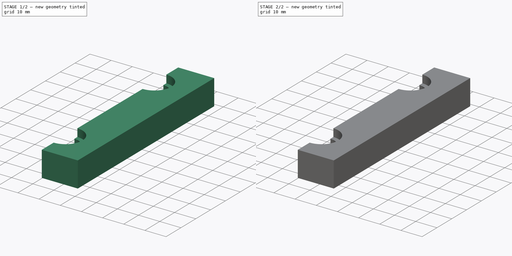
[diagram: build sequence overview — one tinted view per stage of 2, left to right]
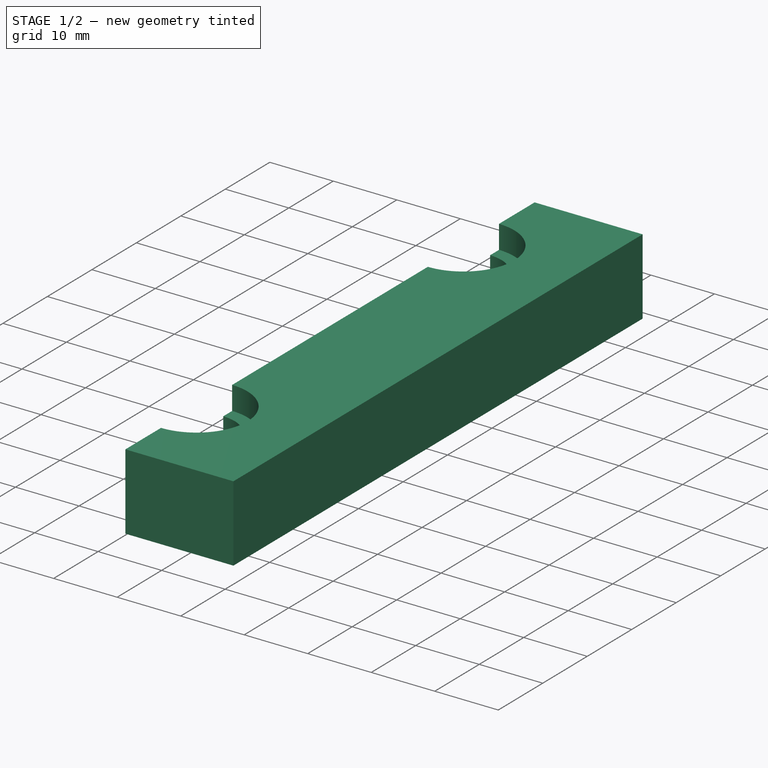
[diagram: stage 1 of 2 — iso view after this stage's code; geometry added in this stage tinted green]
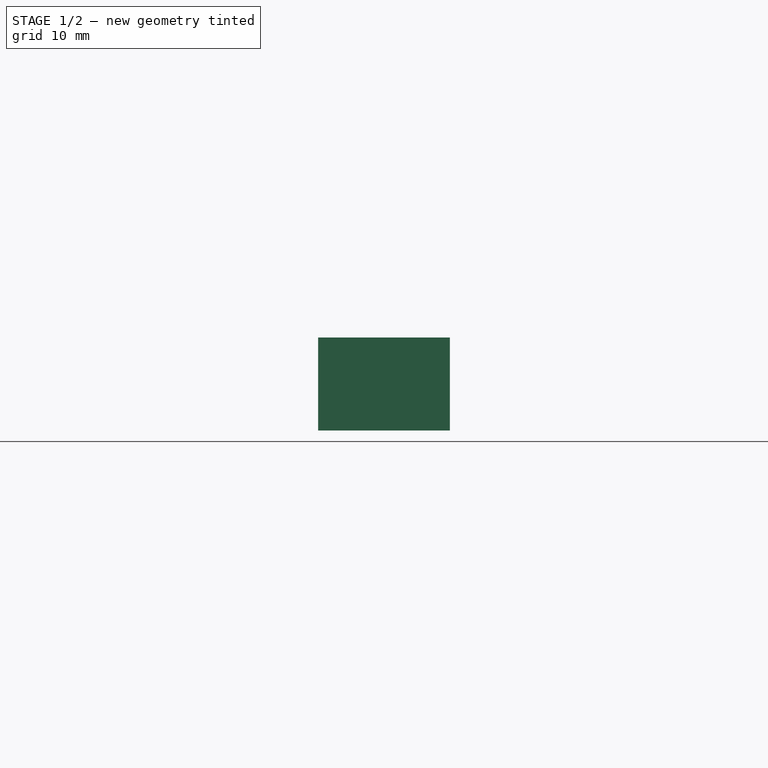
[diagram: stage 1 of 2 — front view after this stage's code; geometry added in this stage tinted green]
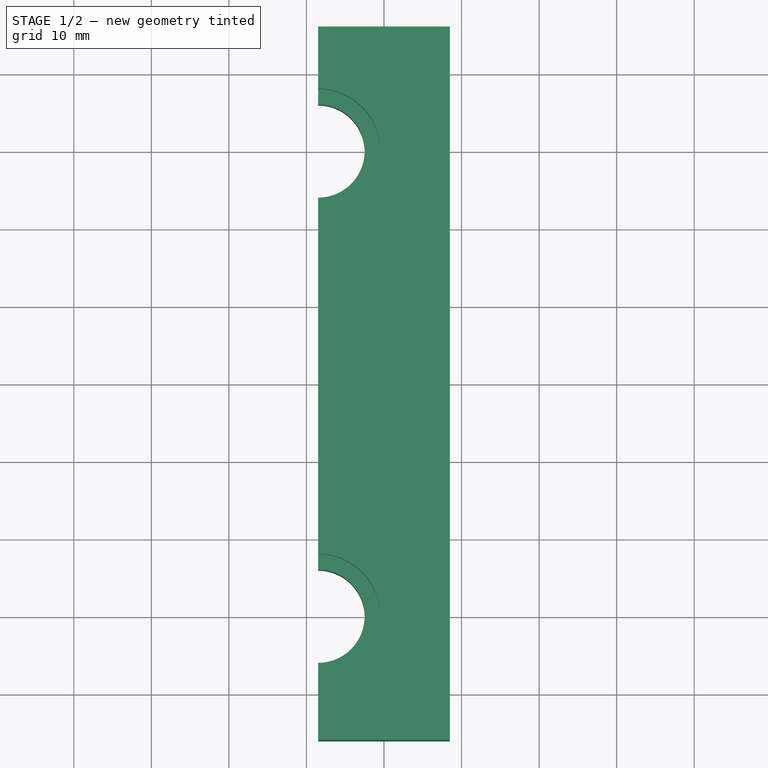
[diagram: stage 1 of 2 — top view after this stage's code; geometry added in this stage tinted green]
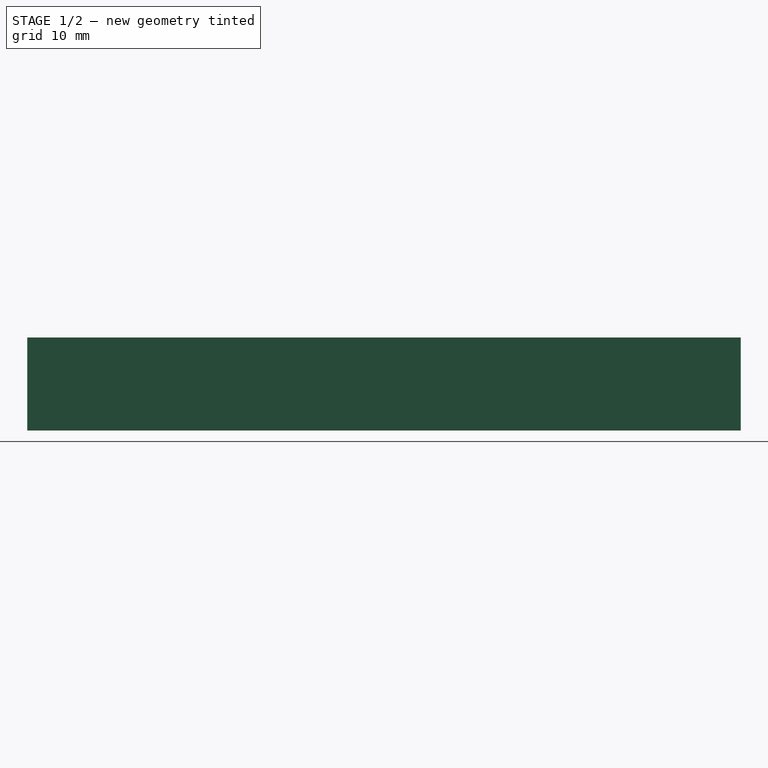
[diagram: stage 1 of 2 — right view after this stage's code; geometry added in this stage tinted green]
FCSTD DOCUMENT  (FreeCAD 0.16R6712 (Git))
Label: hot-end-clamp
License: All rights reserved
LicenseURL: http://en.wikipedia.org/wiki/All_rights_reserved
objects: Sketcher::SketchObject×3, PartDesign::Pocket×2, PartDesign::Pad×1
note: 9 computed .brp shape members not serialized (recipe doc carries the construction recipe); baked Part::Feature solids carry a one-line shape summary decoded from their .brp

FEATURE [Sketcher::SketchObject] Sketch
  sketch-geometry (8):
    g0: LineSegment StartX=-8.5 StartY=36 StartZ=0 EndX=-8.5 EndY=46 EndZ=0
    g1: LineSegment StartX=-8.5 StartY=46 StartZ=0 EndX=8.5 EndY=46 EndZ=0
    g2: LineSegment StartX=8.5 StartY=46 StartZ=0 EndX=8.5 EndY=-46 EndZ=0
    g3: LineSegment StartX=8.5 StartY=-46 StartZ=0 EndX=-8.5 EndY=-46 EndZ=0
    g4: LineSegment StartX=-8.5 StartY=-46 StartZ=0 EndX=-8.5 EndY=-36 EndZ=0
    g5: ArcOfCircle CenterX=-8.5 CenterY=30 CenterZ=0 NormalX=0 NormalY=0 NormalZ=1 Radius=6 StartAngle=4.71239 EndAngle=7.85398
    g6: ArcOfCircle CenterX=-8.5 CenterY=-30 CenterZ=0 NormalX=0 NormalY=0 NormalZ=1 Radius=6 StartAngle=4.71239 EndAngle=7.85398
    g7: LineSegment StartX=-8.5 StartY=24 StartZ=0 EndX=-8.5 EndY=-24 EndZ=0
  constraints (26):
    c: Coincident(g0,g1)
    c: Horizontal(g1)
    c: Coincident(g1,g2)
    c: Vertical(g2)
    c: Coincident(g2,g3)
    c: Horizontal(g3)
    c: Coincident(g3,g4)
    c: Vertical(g4)
    c: Coincident(g5,g0)
    c: Coincident(g6,g4)
    c: Coincident(g7,g5)
    c: Vertical(g0)
    c: Coincident(g7,g6)
    c: Vertical(g7)
    c: Equal(g5,g6)
    c: Radius(g5) = 6
    c: DistanceY(g2,g2) = 92
    c: DistanceY(g5,g0) = 12
    c: DistanceY(g4,g6) = 12
    c: DistanceY(g6,g5) = 60
    c: DistanceY(g0,g0) = 10
    c: DistanceX(g1,g1) = 17
    c: DistanceX(g-1,g1) = 8.5
    c: DistanceY(g-1,g1) = 46
    c: DistanceX(g5,g0) = 0
    c: DistanceY(g6,g6) = 6
FEATURE [PartDesign::Pad] Pad
  Length = 12
  Length2 = 100
  Midplane = true
  Sketch = -> Sketch
  Type = 0
FEATURE [Sketcher::SketchObject] Sketch001
  Placement = pos=(0,0,6) rot=(0,0,1;0rad)
  Support = -> Pad [Face10]
  sketch-geometry (12):
    g0: ArcOfCircle CenterX=-8.50003 CenterY=-30 CenterZ=0 NormalX=0 NormalY=0 NormalZ=1 Radius=8 StartAngle=4.71239 EndAngle=7.85398
    g1: ArcOfCircle CenterX=-8.5 CenterY=30 CenterZ=0 NormalX=0 NormalY=0 NormalZ=1 Radius=8 StartAngle=4.71239 EndAngle=7.85398
    g2: LineSegment StartX=-8.5 StartY=38 StartZ=0 EndX=-18.5 EndY=38 EndZ=0
    g3: LineSegment StartX=-18.5 StartY=38 StartZ=0 EndX=-18.5 EndY=22 EndZ=0
    g4: LineSegment StartX=-18.5 StartY=22 StartZ=0 EndX=-8.5 EndY=22 EndZ=0
    g5: LineSegment StartX=-8.5 StartY=-22 StartZ=0 EndX=-18.5 EndY=-22 EndZ=0
    g6: LineSegment StartX=-18.5 StartY=-22 StartZ=0 EndX=-18.5 EndY=-38 EndZ=0
    g7: LineSegment StartX=-18.5 StartY=-38 StartZ=0 EndX=-8.50003 EndY=-38 EndZ=0
    g8: LineSegment [constr] StartX=-8.5 StartY=46 StartZ=0 EndX=8.5 EndY=46 EndZ=0
    g9: LineSegment [constr] StartX=8.5 StartY=46 StartZ=0 EndX=8.5 EndY=-46 EndZ=0
    g10: LineSegment [constr] StartX=8.5 StartY=-46 StartZ=0 EndX=-8.5 EndY=-46 EndZ=0
    g11: LineSegment [constr] StartX=-8.5 StartY=-46 StartZ=0 EndX=-8.5 EndY=46 EndZ=0
  constraints (36):
    c: Radius(g1) = 8
    c: Radius(g0) = 8
    c: DistanceY(g0,g0) = 8
    c: DistanceY(g1,g1) = 8
    c: Tangent(g1,g2) = -1.5708
    c: Coincident(g2,g3)
    c: Vertical(g3)
    c: Coincident(g3,g4)
    c: Coincident(g4,g1)
    c: Tangent(g0,g5) = -1.5708
    c: Coincident(g5,g6)
    c: Vertical(g6)
    c: Coincident(g6,g7)
    c: Coincident(g7,g0)
    c: Tangent(g7,g0)
    c: Horizontal(g7)
    c: Horizontal(g4)
    c: Tangent(g1,g4)
    c: DistanceX(g1,g-1) = 8.5
    c: DistanceX(g0,g-1) = 8.5
    c: Coincident(g8,g9)
    c: Coincident(g9,g10)
    c: Coincident(g10,g11)
    c: Coincident(g11,g8)
    c: Horizontal(g8)
    c: Horizontal(g10)
    c: Vertical(g9)
    c: Vertical(g11)
    c: DistanceX(g8,g8) = 17
    c: DistanceY(g9,g9) = 92
    c: DistanceX(g-1,g8) = 8.5
    c: DistanceY(g-1,g8) = 46
    c: DistanceY(g1,g8) = 8
    c: DistanceY(g10,g0) = 8
    c: DistanceX(g4,g4) = 10
    c: DistanceX(g5,g5) = 10
FEATURE [PartDesign::Pocket] Pocket
  Length = 3.7
  Sketch = -> Sketch001
  Type = 0
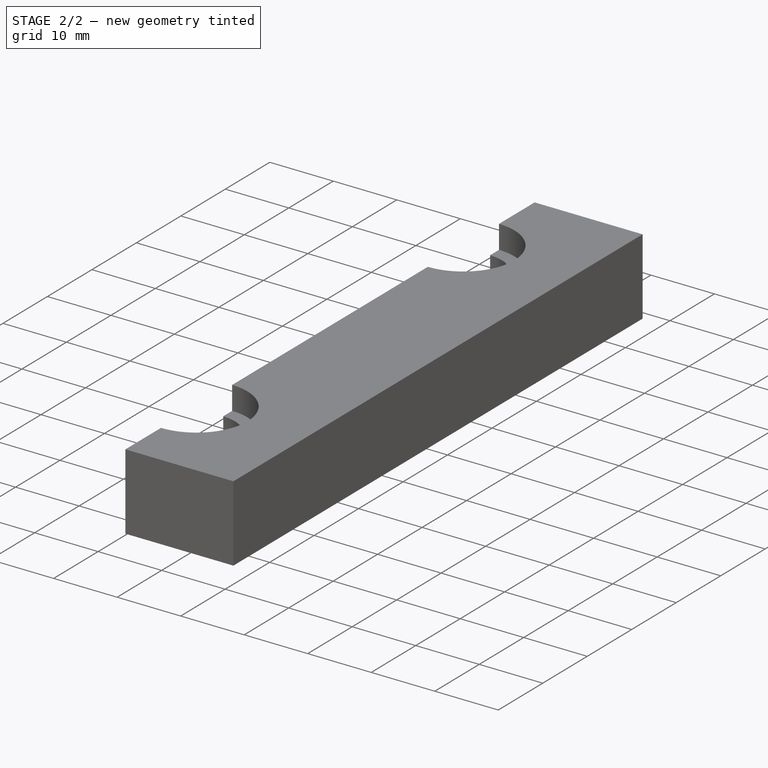
[diagram: stage 2 of 2 — iso view after this stage's code; geometry added in this stage tinted green]
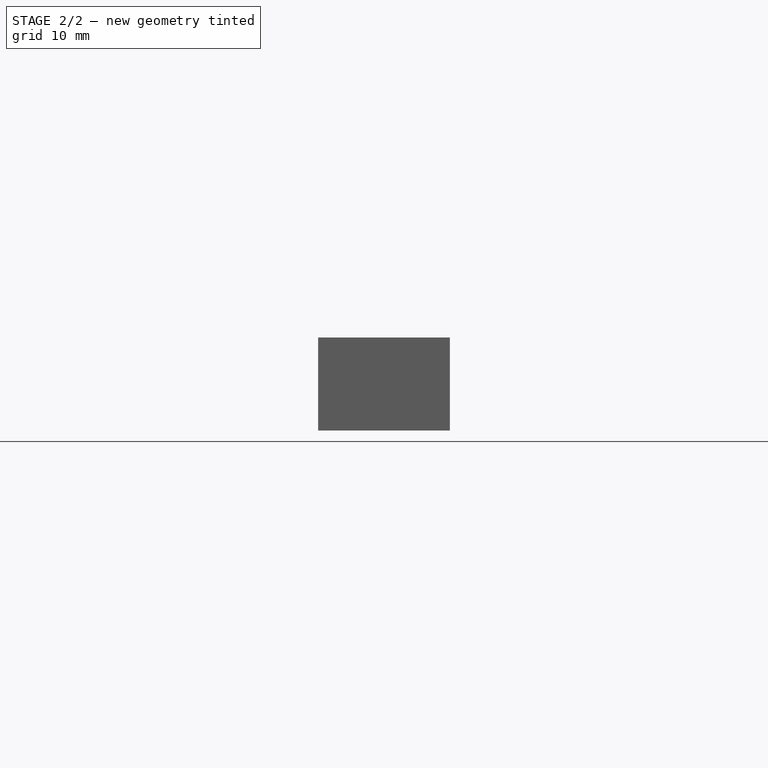
[diagram: stage 2 of 2 — front view after this stage's code; geometry added in this stage tinted green]
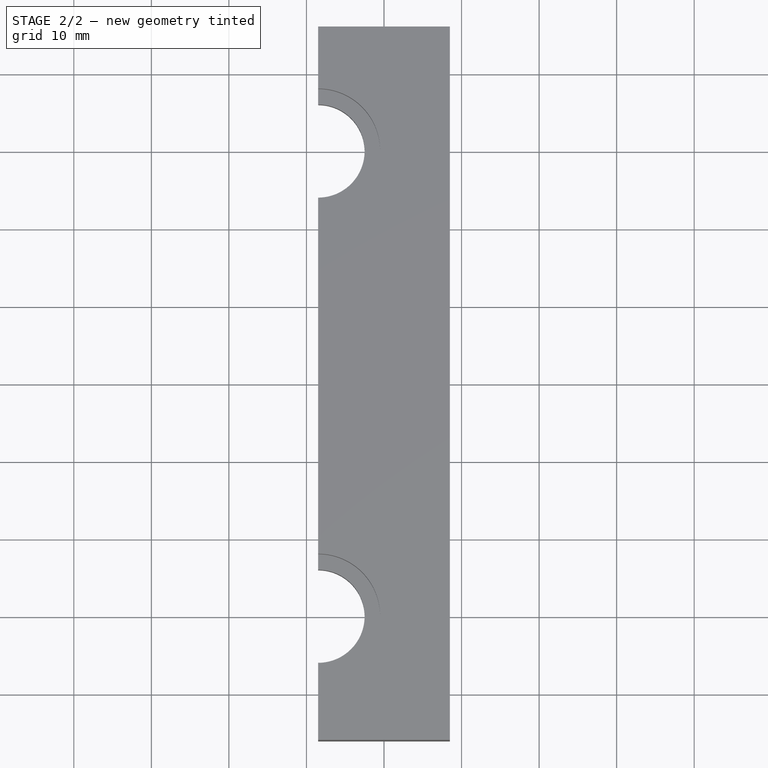
[diagram: stage 2 of 2 — top view after this stage's code; geometry added in this stage tinted green]
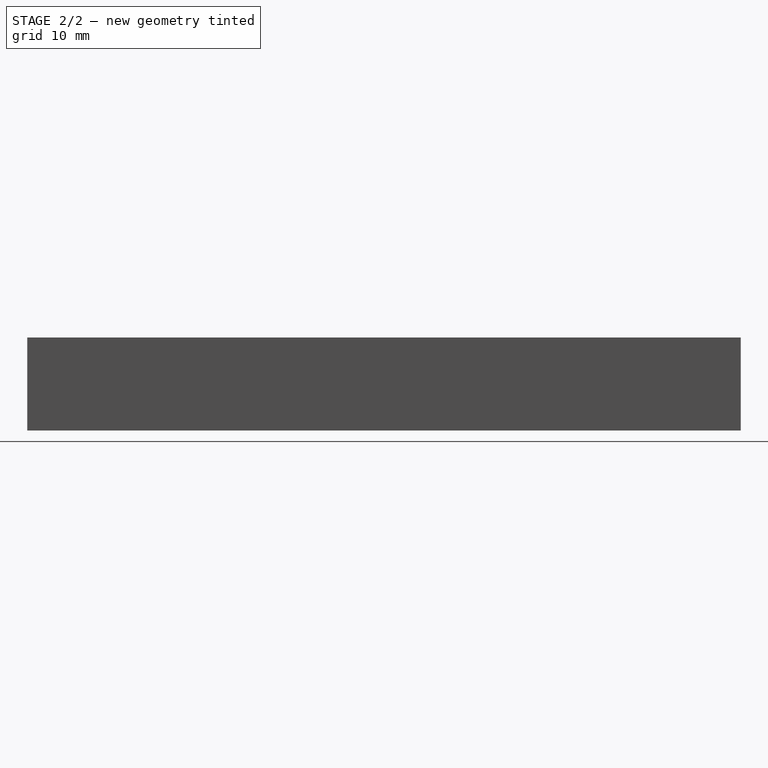
[diagram: stage 2 of 2 — right view after this stage's code; geometry added in this stage tinted green]
FEATURE [Sketcher::SketchObject] Sketch002
  Placement = pos=(0,0,-6) rot=(1,0,0;3.14159rad)
  Support = -> Pocket [Face2]
  sketch-geometry (12):
    g0: LineSegment [constr] StartX=-8.5 StartY=46 StartZ=0 EndX=8.5 EndY=46 EndZ=0
    g1: LineSegment [constr] StartX=8.5 StartY=46 StartZ=0 EndX=8.5 EndY=-46 EndZ=0
    g2: LineSegment [constr] StartX=8.5 StartY=-46 StartZ=0 EndX=-8.5 EndY=-46 EndZ=0
    g3: LineSegment [constr] StartX=-8.5 StartY=-46 StartZ=0 EndX=-8.5 EndY=46 EndZ=0
    g4: ArcOfCircle CenterX=-8.5 CenterY=30 CenterZ=0 NormalX=0 NormalY=0 NormalZ=1 Radius=8 StartAngle=4.71239 EndAngle=7.85398
    g5: ArcOfCircle CenterX=-8.5 CenterY=-30 CenterZ=0 NormalX=0 NormalY=0 NormalZ=1 Radius=8 StartAngle=4.71239 EndAngle=7.85398
    g6: LineSegment StartX=-8.5 StartY=38 StartZ=0 EndX=-24.5 EndY=38 EndZ=0
    g7: LineSegment StartX=-24.5 StartY=38 StartZ=0 EndX=-24.5 EndY=22 EndZ=0
    g8: LineSegment StartX=-24.5 StartY=22 StartZ=0 EndX=-8.5 EndY=22 EndZ=0
    g9: LineSegment StartX=-8.5 StartY=-22 StartZ=0 EndX=-24.5 EndY=-22 EndZ=0
    g10: LineSegment StartX=-24.5 StartY=-22 StartZ=0 EndX=-24.5 EndY=-38 EndZ=0
    g11: LineSegment StartX=-24.5 StartY=-38 StartZ=0 EndX=-8.5 EndY=-38 EndZ=0
  constraints (36):
    c: Coincident(g0,g1)
    c: Coincident(g1,g2)
    c: Coincident(g2,g3)
    c: Coincident(g3,g0)
    c: Horizontal(g0)
    c: Horizontal(g2)
    c: Vertical(g1)
    c: Vertical(g3)
    c: DistanceX(g0,g0) = 17
    c: DistanceY(g1,g1) = 92
    c: DistanceY(g-1,g0) = 46
    c: DistanceX(g0,g-1) = 8.5
    c: PointOnObject(g4,g3)
    c: PointOnObject(g4,g3)
    c: PointOnObject(g4,g3)
    c: PointOnObject(g5,g3)
    c: PointOnObject(g5,g3)
    c: PointOnObject(g5,g3)
    c: Radius(g4) = 8
    c: Radius(g5) = 8
    c: DistanceY(g5,g4) = 60
    c: DistanceY(g2,g5) = 8
    c: Tangent(g4,g6) = -1.5708
    c: Coincident(g6,g7)
    c: Vertical(g7)
    c: Coincident(g7,g8)
    c: Coincident(g8,g4)
    c: Tangent(g5,g9) = -1.5708
    c: Coincident(g9,g10)
    c: Vertical(g10)
    c: Coincident(g10,g11)
    c: Coincident(g11,g5)
    c: Horizontal(g11)
    c: Horizontal(g8)
    c: Equal(g6,g7)
    c: Equal(g10,g9)
FEATURE [PartDesign::Pocket] Pocket001
  Length = 3
  Sketch = -> Sketch002
  Type = 0
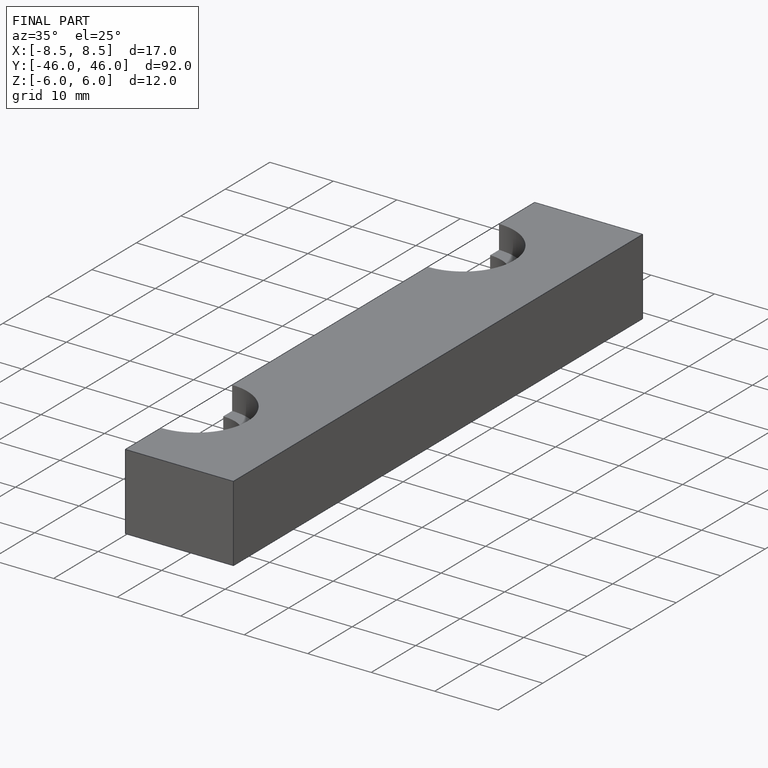
[diagram: finished part — iso view with bounding-box wireframe]
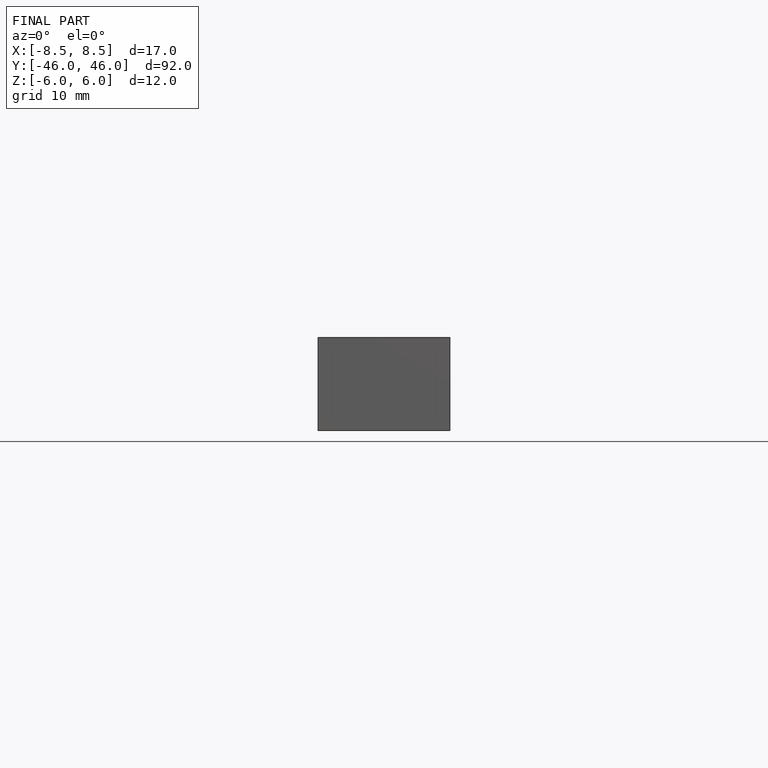
[diagram: finished part — front view with bounding-box wireframe]
